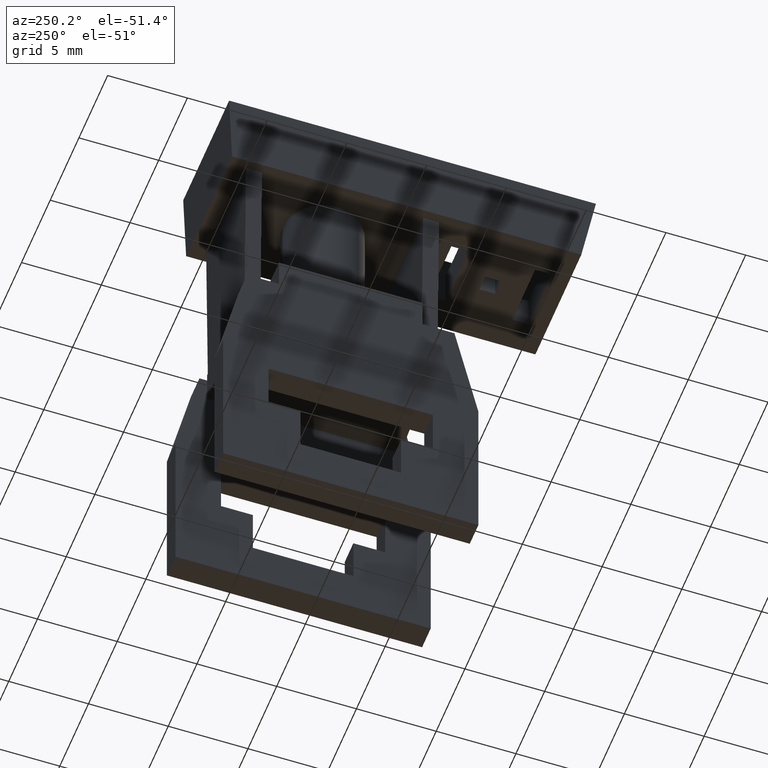
[diagram: clean part render]
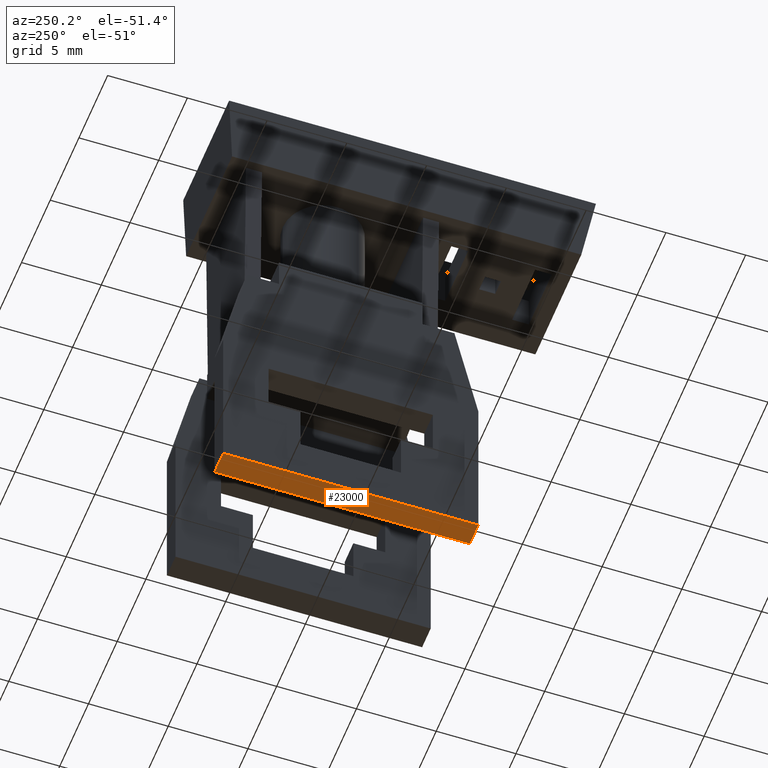
[diagram: same view with one face highlighted and labeled with its STEP entity id]
A machine part, auxiliary view. The second image highlights one B-rep face of the part: STEP entity #23000.
In plain terms, the highlighted planar face has unit normal (-0, -0, -1).
Its self-contained STEP definition (entity closure, byte-faithful):
#18650=CARTESIAN_POINT('',(-9.8,0.,16.));
#18660=VERTEX_POINT('',#18650);
#18810=CARTESIAN_POINT('',(-8.3,0.,16.));
#18820=VERTEX_POINT('',#18810);
#18850=CARTESIAN_POINT('',(0.,0.,16.));
#18860=DIRECTION('',(-1.,0.,0.));
#18870=VECTOR('',#18860,1.);
#18880=LINE('',#18850,#18870);
#18890=EDGE_CURVE('',#18820,#18660,#18880,.T.);
#19720=CARTESIAN_POINT('',(-9.8,0.,0.));
#19730=DIRECTION('',(0.,0.,1.));
#19740=VECTOR('',#19730,1.);
#19750=LINE('',#19720,#19740);
#19760=CARTESIAN_POINT('',(-9.8,0.,3.3690166589284E-15));
#19770=VERTEX_POINT('',#19760);
#19780=EDGE_CURVE('',#19770,#18660,#19750,.T.);
#22160=CARTESIAN_POINT('',(-8.3,0.,3.3690166589284E-15));
#22170=VERTEX_POINT('',#22160);
#22200=CARTESIAN_POINT('',(-8.3,0.,0.));
#22210=DIRECTION('',(0.,0.,1.));
#22220=VECTOR('',#22210,1.);
#22230=LINE('',#22200,#22220);
#22240=EDGE_CURVE('',#22170,#18820,#22230,.T.);
#22840=CARTESIAN_POINT('',(-8.3,0.,0.));
#22850=DIRECTION('',(-0.,-1.,-0.));
#22860=DIRECTION('',(-1.,0.,0.));
#22870=AXIS2_PLACEMENT_3D('',#22840,#22850,#22860);
#22880=PLANE('',#22870);
#22890=ORIENTED_EDGE('',*,*,#18890,.T.);
#22900=ORIENTED_EDGE('',*,*,#22240,.T.);
#22910=CARTESIAN_POINT('',(0.,0.,3.3690166589284E-15));
#22920=DIRECTION('',(1.,0.,0.));
#22930=VECTOR('',#22920,1.);
#22940=LINE('',#22910,#22930);
#22950=EDGE_CURVE('',#19770,#22170,#22940,.T.);
#22960=ORIENTED_EDGE('',*,*,#22950,.T.);
#22970=ORIENTED_EDGE('',*,*,#19780,.F.);
#22980=EDGE_LOOP('',(#22970,#22960,#22900,#22890));
#22990=FACE_OUTER_BOUND('',#22980,.T.);
#23000=ADVANCED_FACE('',(#22990),#22880,.T.);